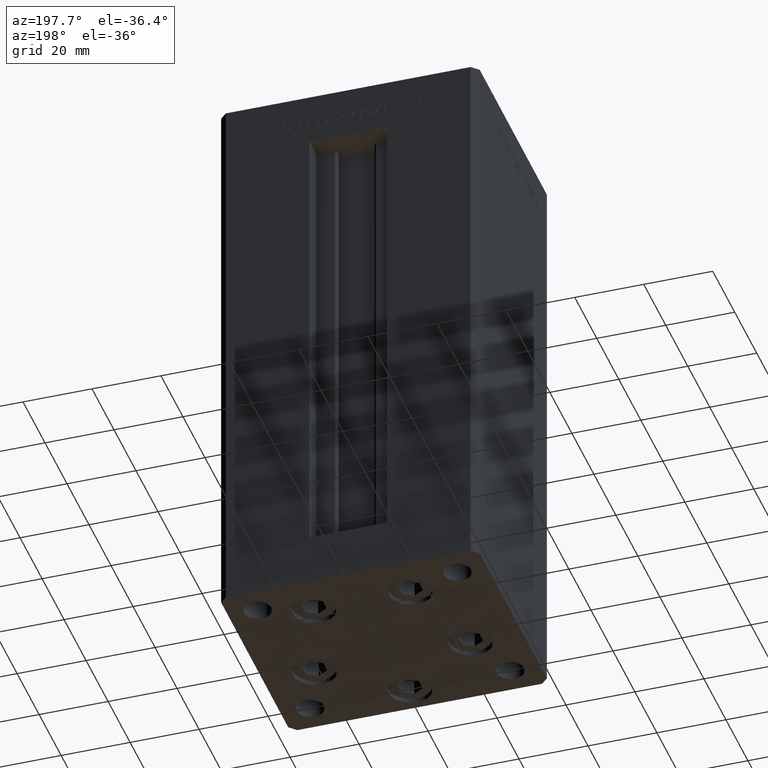
[diagram: clean part render]
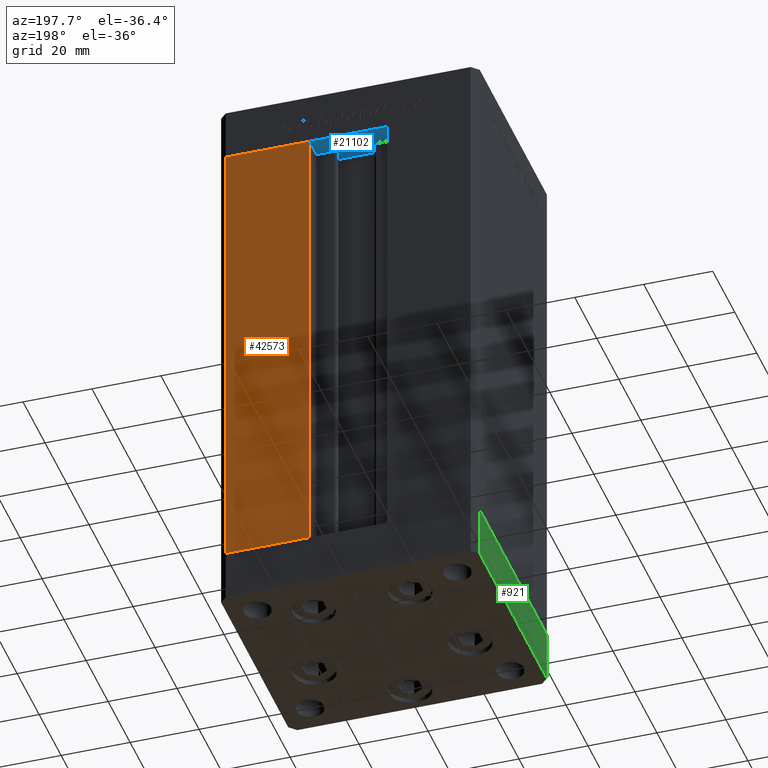
[diagram: same view with three faces highlighted in distinct colors, each labeled with its STEP entity id]
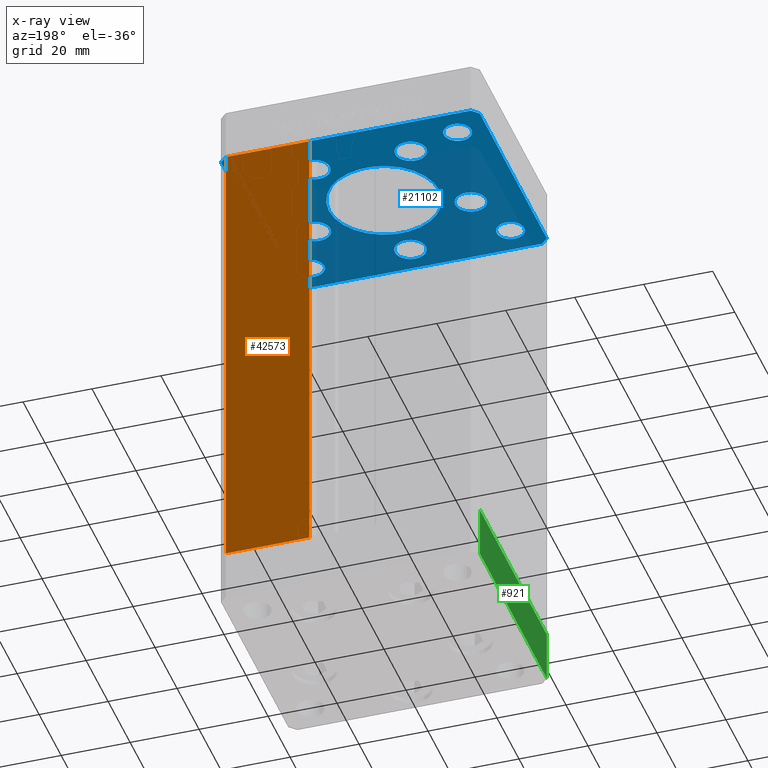
[diagram: x-ray of the same camera — body ghosted, the three highlighted faces saturated]
A machine part, auxiliary view with three faces highlighted in distinct colors.
The next image is the same camera in x-ray (body ghosted, the three faces saturated) — at least one of them is partly hidden behind the body in this view.
Their STEP definitions:

[orange] entity #42573 — the highlighted planar face has unit normal (0, -1, 0).
#1927 = EDGE_CURVE ( 'NONE', #24559, #16770, #36311, .T. ) ;
#3987 = CARTESIAN_POINT ( 'NONE',  ( 11.24999999999999467, 32.49999999999999289, 136.0000000000000000 ) ) ;
#5789 = EDGE_CURVE ( 'NONE', #16770, #24734, #40771, .T. ) ;
#6954 = VECTOR ( 'NONE', #15970, 1000.000000000000000 ) ;
#7693 = LINE ( 'NONE', #23539, #50207 ) ;
#10407 = VECTOR ( 'NONE', #34188, 1000.000000000000000 ) ;
#12284 = EDGE_CURVE ( 'NONE', #41829, #24559, #7693, .T. ) ;
#13925 = DIRECTION ( 'NONE',  ( 0.000000000000000000, -0.000000000000000000, -1.000000000000000000 ) ) ;
#15945 = DIRECTION ( 'NONE',  ( -0.000000000000000000, -0.000000000000000000, -1.000000000000000000 ) ) ;
#15970 = DIRECTION ( 'NONE',  ( 1.000000000000000000, 0.000000000000000000, 0.000000000000000000 ) ) ;
#16751 = CARTESIAN_POINT ( 'NONE',  ( -11.25000000000000178, 32.49999999999999289, 136.0000000000000000 ) ) ;
#16770 = VERTEX_POINT ( 'NONE', #26963 ) ;
#23539 = CARTESIAN_POINT ( 'NONE',  ( 11.25000000000000178, 32.49999999999999289, 0.000000000000000000 ) ) ;
#24559 = VERTEX_POINT ( 'NONE', #3987 ) ;
#24734 = VERTEX_POINT ( 'NONE', #50090 ) ;
#26405 = ORIENTED_EDGE ( 'NONE', *, *, #1927, .T. ) ;
#26963 = CARTESIAN_POINT ( 'NONE',  ( 35.50000000000000000, 32.49999999999999289, 136.0000000000000000 ) ) ;
#27377 = AXIS2_PLACEMENT_3D ( 'NONE', #29776, #29499, #13925 ) ;
#29499 = DIRECTION ( 'NONE',  ( 0.000000000000000000, -1.000000000000000000, 0.000000000000000000 ) ) ;
#29776 = CARTESIAN_POINT ( 'NONE',  ( -11.25000000000000178, 32.49999999999999289, 136.0000000000000000 ) ) ;
#29973 = CARTESIAN_POINT ( 'NONE',  ( -11.25000000000000178, 32.49999999999999289, 0.000000000000000000 ) ) ;
#30275 = FACE_OUTER_BOUND ( 'NONE', #43866, .T. ) ;
#31801 = ORIENTED_EDGE ( 'NONE', *, *, #40161, .T. ) ;
#34188 = DIRECTION ( 'NONE',  ( -1.000000000000000000, 0.000000000000000000, 0.000000000000000000 ) ) ;
#34442 = LINE ( 'NONE', #29973, #10407 ) ;
#35604 = VECTOR ( 'NONE', #15945, 1000.000000000000000 ) ;
#36311 = LINE ( 'NONE', #16751, #6954 ) ;
#39655 = DIRECTION ( 'NONE',  ( -0.000000000000000000, -0.000000000000000000, 1.000000000000000000 ) ) ;
#39994 = CARTESIAN_POINT ( 'NONE',  ( 35.50000000000000000, 32.49999999999999289, 136.0000000000000000 ) ) ;
#40161 = EDGE_CURVE ( 'NONE', #24734, #41829, #34442, .T. ) ;
#40771 = LINE ( 'NONE', #39994, #35604 ) ;
#40917 = ORIENTED_EDGE ( 'NONE', *, *, #5789, .T. ) ;
#40933 = ORIENTED_EDGE ( 'NONE', *, *, #12284, .T. ) ;
#41829 = VERTEX_POINT ( 'NONE', #49787 ) ;
#42573 = ADVANCED_FACE ( 'NONE', ( #30275 ), #50094, .F. ) ;
#43866 = EDGE_LOOP ( 'NONE', ( #31801, #40933, #26405, #40917 ) ) ;
#49787 = CARTESIAN_POINT ( 'NONE',  ( 11.25000000000000178, 32.49999999999999289, 0.000000000000000000 ) ) ;
#50090 = CARTESIAN_POINT ( 'NONE',  ( 35.50000000000000000, 32.49999999999999289, 0.000000000000000000 ) ) ;
#50094 = PLANE ( 'NONE',  #27377 ) ;
#50207 = VECTOR ( 'NONE', #39655, 1000.000000000000000 ) ;

[blue] entity #21102 — the highlighted planar face has unit normal (0, 0, 1).
#200 = EDGE_CURVE ( 'NONE', #32732, #41507, #43193, .T. ) ;
#228 = VERTEX_POINT ( 'NONE', #41039 ) ;
#476 = CARTESIAN_POINT ( 'NONE',  ( -29.00000000000000000, -23.99999999999999645, -15.00000000000000000 ) ) ;
#844 = DIRECTION ( 'NONE',  ( -0.7071067811865524577, 0.7071067811865426878, 0.000000000000000000 ) ) ;
#950 = ORIENTED_EDGE ( 'NONE', *, *, #1694, .F. ) ;
#1377 = EDGE_CURVE ( 'NONE', #35932, #33489, #33045, .T. ) ;
#1400 = AXIS2_PLACEMENT_3D ( 'NONE', #476, #48774, #12592 ) ;
#1590 = ORIENTED_EDGE ( 'NONE', *, *, #36398, .F. ) ;
#1694 = EDGE_CURVE ( 'NONE', #13457, #20293, #46573, .T. ) ;
#2231 = EDGE_CURVE ( 'NONE', #20699, #23492, #43237, .T. ) ;
#3050 = DIRECTION ( 'NONE',  ( 1.000000000000000000, 0.000000000000000000, 0.000000000000000000 ) ) ;
#3270 = CIRCLE ( 'NONE', #28589, 4.500000000000001776 ) ;
#3855 = DIRECTION ( 'NONE',  ( -0.000000000000000000, -0.000000000000000000, -1.000000000000000000 ) ) ;
#4065 = CARTESIAN_POINT ( 'NONE',  ( 4.500000000000001776, -24.00000000000001066, -15.00000000000000000 ) ) ;
#4249 = VERTEX_POINT ( 'NONE', #39952 ) ;
#4338 = VECTOR ( 'NONE', #844, 1000.000000000000000 ) ;
#4419 = DIRECTION ( 'NONE',  ( 1.000000000000000000, 0.000000000000000000, 0.000000000000000000 ) ) ;
#4665 = DIRECTION ( 'NONE',  ( 0.000000000000000000, -0.000000000000000000, -1.000000000000000000 ) ) ;
#4853 = CARTESIAN_POINT ( 'NONE',  ( -29.00000000000000000, 24.00000000000000711, -15.00000000000000000 ) ) ;
#4883 = DIRECTION ( 'NONE',  ( -1.000000000000000000, 0.000000000000000000, 0.000000000000000000 ) ) ;
#5016 = VERTEX_POINT ( 'NONE', #43922 ) ;
#5397 = ORIENTED_EDGE ( 'NONE', *, *, #44910, .F. ) ;
#5447 = AXIS2_PLACEMENT_3D ( 'NONE', #4853, #28100, #41028 ) ;
#5609 = CIRCLE ( 'NONE', #34284, 16.00000000000000000 ) ;
#5904 = LINE ( 'NONE', #22004, #19065 ) ;
#5945 = CARTESIAN_POINT ( 'NONE',  ( 29.00000000000000355, -23.99999999999999645, -15.00000000000000000 ) ) ;
#6230 = LINE ( 'NONE', #14676, #9929 ) ;
#6350 = DIRECTION ( 'NONE',  ( 1.000000000000000000, 0.000000000000000000, 0.000000000000000000 ) ) ;
#6463 = DIRECTION ( 'NONE',  ( 1.000000000000000000, 0.000000000000000000, 0.000000000000000000 ) ) ;
#6472 = FACE_BOUND ( 'NONE', #14980, .T. ) ;
#6653 = ORIENTED_EDGE ( 'NONE', *, *, #9963, .F. ) ;
#6946 = VECTOR ( 'NONE', #47720, 1000.000000000000000 ) ;
#8000 = CARTESIAN_POINT ( 'NONE',  ( 18.12741699796953299, -8.000000000000000000, -15.00000000000000000 ) ) ;
#8108 = CARTESIAN_POINT ( 'NONE',  ( -35.50000000000000711, 32.49999999999997868, -15.00000000000000000 ) ) ;
#8163 = CARTESIAN_POINT ( 'NONE',  ( -25.00000000000000000, 24.00000000000000711, -15.00000000000000000 ) ) ;
#8475 = LINE ( 'NONE', #48873, #11465 ) ;
#8624 = VERTEX_POINT ( 'NONE', #15557 ) ;
#8764 = DIRECTION ( 'NONE',  ( 1.000000000000000000, 0.000000000000000000, 0.000000000000000000 ) ) ;
#8816 = CARTESIAN_POINT ( 'NONE',  ( 29.00000000000000000, 24.00000000000000355, -15.00000000000000000 ) ) ;
#9205 = VERTEX_POINT ( 'NONE', #45319 ) ;
#9220 = VERTEX_POINT ( 'NONE', #21544 ) ;
#9569 = DIRECTION ( 'NONE',  ( 0.000000000000000000, 0.000000000000000000, 1.000000000000000000 ) ) ;
#9805 = ORIENTED_EDGE ( 'NONE', *, *, #21810, .F. ) ;
#9919 = CARTESIAN_POINT ( 'NONE',  ( 0.000000000000000000, -24.00000000000001066, -15.00000000000000000 ) ) ;
#9929 = VECTOR ( 'NONE', #30775, 1000.000000000000000 ) ;
#9963 = EDGE_CURVE ( 'NONE', #228, #28398, #30655, .T. ) ;
#9995 = AXIS2_PLACEMENT_3D ( 'NONE', #50552, #43183, #3050 ) ;
#10302 = DIRECTION ( 'NONE',  ( 0.000000000000000000, -0.000000000000000000, -1.000000000000000000 ) ) ;
#10384 = DIRECTION ( 'NONE',  ( 1.000000000000000000, 0.000000000000000000, 0.000000000000000000 ) ) ;
#10427 = FACE_BOUND ( 'NONE', #44568, .T. ) ;
#10820 = ORIENTED_EDGE ( 'NONE', *, *, #30573, .T. ) ;
#10935 = FACE_OUTER_BOUND ( 'NONE', #28818, .T. ) ;
#11085 = DIRECTION ( 'NONE',  ( 1.000000000000000000, 0.000000000000000000, 0.000000000000000000 ) ) ;
#11330 = CARTESIAN_POINT ( 'NONE',  ( -18.12741699796953654, -8.000000000000000000, -15.00000000000000000 ) ) ;
#11343 = AXIS2_PLACEMENT_3D ( 'NONE', #37394, #4665, #40579 ) ;
#11465 = VECTOR ( 'NONE', #37260, 1000.000000000000000 ) ;
#12261 = VERTEX_POINT ( 'NONE', #27498 ) ;
#12326 = EDGE_CURVE ( 'NONE', #23511, #36415, #8475, .T. ) ;
#12459 = CIRCLE ( 'NONE', #31032, 4.499999999999997335 ) ;
#12530 = EDGE_LOOP ( 'NONE', ( #6653, #9805 ) ) ;
#12592 = DIRECTION ( 'NONE',  ( 1.000000000000000000, 0.000000000000000000, 0.000000000000000000 ) ) ;
#12645 = DIRECTION ( 'NONE',  ( 0.000000000000000000, -0.000000000000000000, -1.000000000000000000 ) ) ;
#12935 = AXIS2_PLACEMENT_3D ( 'NONE', #31034, #47138, #43712 ) ;
#12973 = DIRECTION ( 'NONE',  ( 0.000000000000000000, 1.000000000000000000, 0.000000000000000000 ) ) ;
#13030 = DIRECTION ( 'NONE',  ( 1.000000000000000000, 0.000000000000000000, 0.000000000000000000 ) ) ;
#13310 = EDGE_CURVE ( 'NONE', #9205, #15596, #44374, .T. ) ;
#13457 = VERTEX_POINT ( 'NONE', #23629 ) ;
#13707 = EDGE_CURVE ( 'NONE', #22948, #36117, #5904, .T. ) ;
#14311 = EDGE_CURVE ( 'NONE', #23492, #20699, #5609, .T. ) ;
#14676 = CARTESIAN_POINT ( 'NONE',  ( 35.50000000000000000, 32.49999999999999289, -15.00000000000000000 ) ) ;
#14723 = CARTESIAN_POINT ( 'NONE',  ( 37.50000000000000711, 30.50000000000001421, -15.00000000000000000 ) ) ;
#14788 = CIRCLE ( 'NONE', #31672, 4.000000000000000000 ) ;
#14908 = DIRECTION ( 'NONE',  ( 0.000000000000000000, -0.000000000000000000, -1.000000000000000000 ) ) ;
#14980 = EDGE_LOOP ( 'NONE', ( #27582, #26728 ) ) ;
#15098 = AXIS2_PLACEMENT_3D ( 'NONE', #37284, #40733, #8764 ) ;
#15178 = FACE_BOUND ( 'NONE', #33107, .T. ) ;
#15203 = ORIENTED_EDGE ( 'NONE', *, *, #17592, .F. ) ;
#15557 = CARTESIAN_POINT ( 'NONE',  ( -35.50000000000001421, -32.50000000000000711, -15.00000000000000000 ) ) ;
#15596 = VERTEX_POINT ( 'NONE', #31039 ) ;
#16423 = CARTESIAN_POINT ( 'NONE',  ( -35.50000000000001421, -32.50000000000000711, -15.00000000000000000 ) ) ;
#17128 = VERTEX_POINT ( 'NONE', #42511 ) ;
#17138 = AXIS2_PLACEMENT_3D ( 'NONE', #24943, #3855, #4883 ) ;
#17225 = ORIENTED_EDGE ( 'NONE', *, *, #200, .T. ) ;
#17237 = CARTESIAN_POINT ( 'NONE',  ( 29.00000000000000000, 24.00000000000000355, -15.00000000000000000 ) ) ;
#17281 = EDGE_CURVE ( 'NONE', #4249, #38005, #35195, .T. ) ;
#17331 = VECTOR ( 'NONE', #35862, 1000.000000000000000 ) ;
#17347 = DIRECTION ( 'NONE',  ( 1.000000000000000000, 0.000000000000000000, 0.000000000000000000 ) ) ;
#17592 = EDGE_CURVE ( 'NONE', #8624, #22948, #49134, .T. ) ;
#17937 = CIRCLE ( 'NONE', #38998, 4.500000000000005329 ) ;
#17989 = CARTESIAN_POINT ( 'NONE',  ( 35.50000000000000000, 32.49999999999999289, -15.00000000000000000 ) ) ;
#18118 = FACE_BOUND ( 'NONE', #30654, .T. ) ;
#18369 = PLANE ( 'NONE',  #9995 ) ;
#18380 = EDGE_CURVE ( 'NONE', #33489, #12261, #6230, .T. ) ;
#18620 = EDGE_CURVE ( 'NONE', #5016, #35782, #12459, .T. ) ;
#19065 = VECTOR ( 'NONE', #24547, 1000.000000000000000 ) ;
#19630 = CARTESIAN_POINT ( 'NONE',  ( -9.491068579633243019, 19.50000000000000000, -15.00000000000000000 ) ) ;
#20116 = ORIENTED_EDGE ( 'NONE', *, *, #38979, .F. ) ;
#20293 = VERTEX_POINT ( 'NONE', #4065 ) ;
#20307 = AXIS2_PLACEMENT_3D ( 'NONE', #42588, #46027, #22506 ) ;
#20699 = VERTEX_POINT ( 'NONE', #52044 ) ;
#21102 = ADVANCED_FACE ( 'NONE', ( #47122, #6472, #18118, #22320, #26534, #22833, #10427, #38956, #10935, #27053, #15178 ), #18369, .F. ) ;
#21150 = EDGE_CURVE ( 'NONE', #20293, #13457, #3270, .T. ) ;
#21430 = CARTESIAN_POINT ( 'NONE',  ( -37.50000000000000000, -30.50000000000004263, -15.00000000000000000 ) ) ;
#21540 = DIRECTION ( 'NONE',  ( -0.000000000000000000, -0.000000000000000000, -1.000000000000000000 ) ) ;
#21544 = CARTESIAN_POINT ( 'NONE',  ( 18.49106857963324657, 19.50000000000000000, -15.00000000000000000 ) ) ;
#21745 = ORIENTED_EDGE ( 'NONE', *, *, #36698, .F. ) ;
#21810 = EDGE_CURVE ( 'NONE', #28398, #228, #26877, .T. ) ;
#22004 = CARTESIAN_POINT ( 'NONE',  ( 35.50000000000001421, -32.49999999999992184, -15.00000000000000000 ) ) ;
#22118 = CARTESIAN_POINT ( 'NONE',  ( -33.00000000000000000, 24.00000000000000711, -15.00000000000000000 ) ) ;
#22209 = EDGE_CURVE ( 'NONE', #35782, #5016, #33632, .T. ) ;
#22320 = FACE_BOUND ( 'NONE', #12530, .T. ) ;
#22506 = DIRECTION ( 'NONE',  ( 1.000000000000000000, 0.000000000000000000, 0.000000000000000000 ) ) ;
#22563 = CARTESIAN_POINT ( 'NONE',  ( 0.000000000000000000, 0.000000000000000000, -15.00000000000000000 ) ) ;
#22726 = ORIENTED_EDGE ( 'NONE', *, *, #18380, .F. ) ;
#22833 = FACE_BOUND ( 'NONE', #48204, .T. ) ;
#22948 = VERTEX_POINT ( 'NONE', #40523 ) ;
#23492 = VERTEX_POINT ( 'NONE', #30587 ) ;
#23511 = VERTEX_POINT ( 'NONE', #46955 ) ;
#23629 = CARTESIAN_POINT ( 'NONE',  ( -4.500000000000001776, -24.00000000000001066, -15.00000000000000000 ) ) ;
#23894 = DIRECTION ( 'NONE',  ( 1.000000000000000000, 0.000000000000000000, 0.000000000000000000 ) ) ;
#24293 = VERTEX_POINT ( 'NONE', #19630 ) ;
#24410 = DIRECTION ( 'NONE',  ( 0.000000000000000000, -0.000000000000000000, -1.000000000000000000 ) ) ;
#24547 = DIRECTION ( 'NONE',  ( 0.7071067811865463515, 0.7071067811865487940, 0.000000000000000000 ) ) ;
#24650 = CARTESIAN_POINT ( 'NONE',  ( 13.99106857963324124, 19.50000000000000000, -15.00000000000000000 ) ) ;
#24943 = CARTESIAN_POINT ( 'NONE',  ( 29.00000000000000355, -23.99999999999999645, -15.00000000000000000 ) ) ;
#25118 = CARTESIAN_POINT ( 'NONE',  ( 37.50000000000000711, 30.50000000000001421, -15.00000000000000000 ) ) ;
#25230 = VERTEX_POINT ( 'NONE', #39701 ) ;
#26025 = DIRECTION ( 'NONE',  ( 0.000000000000000000, -0.000000000000000000, -1.000000000000000000 ) ) ;
#26534 = FACE_BOUND ( 'NONE', #37414, .T. ) ;
#26728 = ORIENTED_EDGE ( 'NONE', *, *, #18620, .F. ) ;
#26877 = CIRCLE ( 'NONE', #27714, 4.500000000000000888 ) ;
#27053 = FACE_BOUND ( 'NONE', #44749, .T. ) ;
#27181 = CARTESIAN_POINT ( 'NONE',  ( 22.62741699796953299, -8.000000000000000000, -15.00000000000000000 ) ) ;
#27412 = LINE ( 'NONE', #43784, #17331 ) ;
#27478 = ORIENTED_EDGE ( 'NONE', *, *, #13310, .T. ) ;
#27498 = CARTESIAN_POINT ( 'NONE',  ( -35.50000000000000711, 32.49999999999997868, -15.00000000000000000 ) ) ;
#27582 = ORIENTED_EDGE ( 'NONE', *, *, #22209, .F. ) ;
#27714 = AXIS2_PLACEMENT_3D ( 'NONE', #48827, #12645, #40918 ) ;
#27721 = DIRECTION ( 'NONE',  ( 0.000000000000000000, -0.000000000000000000, -1.000000000000000000 ) ) ;
#28034 = AXIS2_PLACEMENT_3D ( 'NONE', #22563, #38683, #47379 ) ;
#28100 = DIRECTION ( 'NONE',  ( -0.000000000000000000, -0.000000000000000000, -1.000000000000000000 ) ) ;
#28210 = CIRCLE ( 'NONE', #5447, 4.000000000000000000 ) ;
#28287 = ORIENTED_EDGE ( 'NONE', *, *, #1377, .F. ) ;
#28398 = VERTEX_POINT ( 'NONE', #8000 ) ;
#28589 = AXIS2_PLACEMENT_3D ( 'NONE', #36576, #24410, #23894 ) ;
#28818 = EDGE_LOOP ( 'NONE', ( #5397, #50155, #36152, #22726, #28287, #1590, #49797, #15203 ) ) ;
#28957 = CARTESIAN_POINT ( 'NONE',  ( 37.50000000000000711, -30.49999999999992895, -15.00000000000000000 ) ) ;
#29610 = AXIS2_PLACEMENT_3D ( 'NONE', #9919, #26025, #17347 ) ;
#29982 = DIRECTION ( 'NONE',  ( -1.000000000000000000, 0.000000000000000000, 0.000000000000000000 ) ) ;
#30372 = CARTESIAN_POINT ( 'NONE',  ( 13.99106857963324124, 19.50000000000000000, -15.00000000000000000 ) ) ;
#30382 = VERTEX_POINT ( 'NONE', #22118 ) ;
#30489 = CARTESIAN_POINT ( 'NONE',  ( -13.99106857963324124, 19.50000000000000000, -15.00000000000000000 ) ) ;
#30573 = EDGE_CURVE ( 'NONE', #15596, #9205, #40551, .T. ) ;
#30587 = CARTESIAN_POINT ( 'NONE',  ( -16.00000000000000000, 1.959434878635765131E-15, -15.00000000000000000 ) ) ;
#30654 = EDGE_LOOP ( 'NONE', ( #34872, #950 ) ) ;
#30655 = CIRCLE ( 'NONE', #32379, 4.500000000000000888 ) ;
#30762 = CIRCLE ( 'NONE', #31629, 4.500000000000005329 ) ;
#30775 = DIRECTION ( 'NONE',  ( -1.000000000000000000, -1.954618001100627573E-16, 0.000000000000000000 ) ) ;
#31032 = AXIS2_PLACEMENT_3D ( 'NONE', #35393, #27721, #11085 ) ;
#31034 = CARTESIAN_POINT ( 'NONE',  ( -29.00000000000000000, 24.00000000000000711, -15.00000000000000000 ) ) ;
#31039 = CARTESIAN_POINT ( 'NONE',  ( -25.00000000000000355, -23.99999999999999645, -15.00000000000000000 ) ) ;
#31284 = CARTESIAN_POINT ( 'NONE',  ( 25.00000000000000355, -23.99999999999999645, -15.00000000000000000 ) ) ;
#31512 = ORIENTED_EDGE ( 'NONE', *, *, #45708, .T. ) ;
#31629 = AXIS2_PLACEMENT_3D ( 'NONE', #24650, #41024, #40772 ) ;
#31672 = AXIS2_PLACEMENT_3D ( 'NONE', #17237, #9569, #33327 ) ;
#32379 = AXIS2_PLACEMENT_3D ( 'NONE', #27181, #49017, #4419 ) ;
#32732 = VERTEX_POINT ( 'NONE', #51777 ) ;
#32779 = DIRECTION ( 'NONE',  ( 1.000000000000000000, 1.172770800660376149E-15, 0.000000000000000000 ) ) ;
#33044 = LINE ( 'NONE', #49151, #38180 ) ;
#33045 = LINE ( 'NONE', #25118, #4338 ) ;
#33107 = EDGE_LOOP ( 'NONE', ( #42790, #20116 ) ) ;
#33327 = DIRECTION ( 'NONE',  ( 1.000000000000000000, 0.000000000000000000, 0.000000000000000000 ) ) ;
#33489 = VERTEX_POINT ( 'NONE', #17989 ) ;
#33632 = CIRCLE ( 'NONE', #15098, 4.499999999999997335 ) ;
#33635 = CARTESIAN_POINT ( 'NONE',  ( 0.000000000000000000, 0.000000000000000000, -15.00000000000000000 ) ) ;
#34124 = CIRCLE ( 'NONE', #11343, 4.499999999999999112 ) ;
#34284 = AXIS2_PLACEMENT_3D ( 'NONE', #33635, #50011, #10384 ) ;
#34725 = AXIS2_PLACEMENT_3D ( 'NONE', #30489, #14908, #6463 ) ;
#34872 = ORIENTED_EDGE ( 'NONE', *, *, #21150, .F. ) ;
#34934 = ORIENTED_EDGE ( 'NONE', *, *, #38849, .F. ) ;
#35193 = EDGE_CURVE ( 'NONE', #17128, #24293, #37272, .T. ) ;
#35195 = CIRCLE ( 'NONE', #49555, 4.000000000000000000 ) ;
#35393 = CARTESIAN_POINT ( 'NONE',  ( -22.62741699796953299, -8.000000000000000000, -15.00000000000000000 ) ) ;
#35713 = CIRCLE ( 'NONE', #17138, 4.000000000000000000 ) ;
#35782 = VERTEX_POINT ( 'NONE', #11330 ) ;
#35862 = DIRECTION ( 'NONE',  ( 0.7071067811865512365, -0.7071067811865439090, 0.000000000000000000 ) ) ;
#35932 = VERTEX_POINT ( 'NONE', #14723 ) ;
#36117 = VERTEX_POINT ( 'NONE', #28957 ) ;
#36152 = ORIENTED_EDGE ( 'NONE', *, *, #37088, .F. ) ;
#36398 = EDGE_CURVE ( 'NONE', #36117, #35932, #33044, .T. ) ;
#36415 = VERTEX_POINT ( 'NONE', #21430 ) ;
#36576 = CARTESIAN_POINT ( 'NONE',  ( 0.000000000000000000, -24.00000000000001066, -15.00000000000000000 ) ) ;
#36603 = ORIENTED_EDGE ( 'NONE', *, *, #43587, .F. ) ;
#36698 = EDGE_CURVE ( 'NONE', #9220, #25230, #17937, .T. ) ;
#36816 = EDGE_LOOP ( 'NONE', ( #10820, #27478 ) ) ;
#36824 = VERTEX_POINT ( 'NONE', #8163 ) ;
#37088 = EDGE_CURVE ( 'NONE', #12261, #23511, #46937, .T. ) ;
#37260 = DIRECTION ( 'NONE',  ( 2.275047181608926165E-16, -1.000000000000000000, 0.000000000000000000 ) ) ;
#37272 = CIRCLE ( 'NONE', #34725, 4.499999999999999112 ) ;
#37284 = CARTESIAN_POINT ( 'NONE',  ( -22.62741699796953299, -8.000000000000000000, -15.00000000000000000 ) ) ;
#37394 = CARTESIAN_POINT ( 'NONE',  ( -13.99106857963324124, 19.50000000000000000, -15.00000000000000000 ) ) ;
#37414 = EDGE_LOOP ( 'NONE', ( #21745, #49677 ) ) ;
#38005 = VERTEX_POINT ( 'NONE', #31284 ) ;
#38180 = VECTOR ( 'NONE', #12973, 1000.000000000000000 ) ;
#38683 = DIRECTION ( 'NONE',  ( 0.000000000000000000, -0.000000000000000000, -1.000000000000000000 ) ) ;
#38849 = EDGE_CURVE ( 'NONE', #30382, #36824, #40784, .T. ) ;
#38956 = FACE_BOUND ( 'NONE', #36816, .T. ) ;
#38979 = EDGE_CURVE ( 'NONE', #38005, #4249, #35713, .T. ) ;
#38998 = AXIS2_PLACEMENT_3D ( 'NONE', #30372, #10302, #6350 ) ;
#39701 = CARTESIAN_POINT ( 'NONE',  ( 9.491068579633235913, 19.50000000000000000, -15.00000000000000000 ) ) ;
#39952 = CARTESIAN_POINT ( 'NONE',  ( 33.00000000000000000, -23.99999999999999645, -15.00000000000000000 ) ) ;
#40523 = CARTESIAN_POINT ( 'NONE',  ( 35.50000000000001421, -32.49999999999992184, -15.00000000000000000 ) ) ;
#40551 = CIRCLE ( 'NONE', #20307, 3.999999999999996447 ) ;
#40579 = DIRECTION ( 'NONE',  ( 1.000000000000000000, 0.000000000000000000, 0.000000000000000000 ) ) ;
#40733 = DIRECTION ( 'NONE',  ( 0.000000000000000000, -0.000000000000000000, -1.000000000000000000 ) ) ;
#40772 = DIRECTION ( 'NONE',  ( 1.000000000000000000, 0.000000000000000000, 0.000000000000000000 ) ) ;
#40784 = CIRCLE ( 'NONE', #12935, 4.000000000000000000 ) ;
#40918 = DIRECTION ( 'NONE',  ( 1.000000000000000000, 0.000000000000000000, 0.000000000000000000 ) ) ;
#41024 = DIRECTION ( 'NONE',  ( 0.000000000000000000, -0.000000000000000000, -1.000000000000000000 ) ) ;
#41028 = DIRECTION ( 'NONE',  ( -1.000000000000000000, 0.000000000000000000, 0.000000000000000000 ) ) ;
#41039 = CARTESIAN_POINT ( 'NONE',  ( 27.12741699796953654, -8.000000000000000000, -15.00000000000000000 ) ) ;
#41507 = VERTEX_POINT ( 'NONE', #48369 ) ;
#42511 = CARTESIAN_POINT ( 'NONE',  ( -18.49106857963323947, 19.50000000000000000, -15.00000000000000000 ) ) ;
#42588 = CARTESIAN_POINT ( 'NONE',  ( -29.00000000000000000, -23.99999999999999645, -15.00000000000000000 ) ) ;
#42790 = ORIENTED_EDGE ( 'NONE', *, *, #17281, .F. ) ;
#43183 = DIRECTION ( 'NONE',  ( -0.000000000000000000, 0.000000000000000000, 1.000000000000000000 ) ) ;
#43193 = CIRCLE ( 'NONE', #49098, 4.000000000000000000 ) ;
#43237 = CIRCLE ( 'NONE', #28034, 16.00000000000000000 ) ;
#43587 = EDGE_CURVE ( 'NONE', #24293, #17128, #34124, .T. ) ;
#43712 = DIRECTION ( 'NONE',  ( -1.000000000000000000, 0.000000000000000000, 0.000000000000000000 ) ) ;
#43784 = CARTESIAN_POINT ( 'NONE',  ( -37.50000000000000000, -30.50000000000004263, -15.00000000000000000 ) ) ;
#43922 = CARTESIAN_POINT ( 'NONE',  ( -27.12741699796953299, -8.000000000000000000, -15.00000000000000000 ) ) ;
#43944 = EDGE_CURVE ( 'NONE', #25230, #9220, #30762, .T. ) ;
#44374 = CIRCLE ( 'NONE', #1400, 3.999999999999996447 ) ;
#44440 = EDGE_LOOP ( 'NONE', ( #47074, #45588 ) ) ;
#44568 = EDGE_LOOP ( 'NONE', ( #17225, #31512 ) ) ;
#44749 = EDGE_LOOP ( 'NONE', ( #51243, #34934 ) ) ;
#44910 = EDGE_CURVE ( 'NONE', #36415, #8624, #27412, .T. ) ;
#45006 = DIRECTION ( 'NONE',  ( 0.000000000000000000, 0.000000000000000000, 1.000000000000000000 ) ) ;
#45319 = CARTESIAN_POINT ( 'NONE',  ( -32.99999999999999289, -23.99999999999999645, -15.00000000000000000 ) ) ;
#45588 = ORIENTED_EDGE ( 'NONE', *, *, #14311, .F. ) ;
#45708 = EDGE_CURVE ( 'NONE', #41507, #32732, #14788, .T. ) ;
#46027 = DIRECTION ( 'NONE',  ( 0.000000000000000000, 0.000000000000000000, 1.000000000000000000 ) ) ;
#46573 = CIRCLE ( 'NONE', #29610, 4.500000000000001776 ) ;
#46937 = LINE ( 'NONE', #8108, #6946 ) ;
#46955 = CARTESIAN_POINT ( 'NONE',  ( -37.50000000000001421, 30.50000000000000000, -15.00000000000000000 ) ) ;
#47074 = ORIENTED_EDGE ( 'NONE', *, *, #2231, .F. ) ;
#47085 = EDGE_CURVE ( 'NONE', #36824, #30382, #28210, .T. ) ;
#47122 = FACE_BOUND ( 'NONE', #44440, .T. ) ;
#47138 = DIRECTION ( 'NONE',  ( -0.000000000000000000, -0.000000000000000000, -1.000000000000000000 ) ) ;
#47379 = DIRECTION ( 'NONE',  ( 1.000000000000000000, 0.000000000000000000, 0.000000000000000000 ) ) ;
#47720 = DIRECTION ( 'NONE',  ( -0.7071067811865524577, -0.7071067811865426878, 0.000000000000000000 ) ) ;
#48204 = EDGE_LOOP ( 'NONE', ( #36603, #49971 ) ) ;
#48369 = CARTESIAN_POINT ( 'NONE',  ( 24.99999999999999645, 24.00000000000000355, -15.00000000000000000 ) ) ;
#48774 = DIRECTION ( 'NONE',  ( 0.000000000000000000, 0.000000000000000000, 1.000000000000000000 ) ) ;
#48827 = CARTESIAN_POINT ( 'NONE',  ( 22.62741699796953299, -8.000000000000000000, -15.00000000000000000 ) ) ;
#48873 = CARTESIAN_POINT ( 'NONE',  ( -37.50000000000001421, 30.50000000000000000, -15.00000000000000000 ) ) ;
#49017 = DIRECTION ( 'NONE',  ( 0.000000000000000000, -0.000000000000000000, -1.000000000000000000 ) ) ;
#49098 = AXIS2_PLACEMENT_3D ( 'NONE', #8816, #45006, #13030 ) ;
#49134 = LINE ( 'NONE', #16423, #51196 ) ;
#49151 = CARTESIAN_POINT ( 'NONE',  ( 37.50000000000000711, -30.49999999999992895, -15.00000000000000000 ) ) ;
#49555 = AXIS2_PLACEMENT_3D ( 'NONE', #5945, #21540, #29982 ) ;
#49677 = ORIENTED_EDGE ( 'NONE', *, *, #43944, .F. ) ;
#49797 = ORIENTED_EDGE ( 'NONE', *, *, #13707, .F. ) ;
#49971 = ORIENTED_EDGE ( 'NONE', *, *, #35193, .F. ) ;
#50011 = DIRECTION ( 'NONE',  ( 0.000000000000000000, -0.000000000000000000, -1.000000000000000000 ) ) ;
#50155 = ORIENTED_EDGE ( 'NONE', *, *, #12326, .F. ) ;
#50552 = CARTESIAN_POINT ( 'NONE',  ( 0.000000000000000000, 0.000000000000000000, -15.00000000000000000 ) ) ;
#51196 = VECTOR ( 'NONE', #32779, 1000.000000000000000 ) ;
#51243 = ORIENTED_EDGE ( 'NONE', *, *, #47085, .F. ) ;
#51777 = CARTESIAN_POINT ( 'NONE',  ( 33.00000000000000000, 24.00000000000000355, -15.00000000000000000 ) ) ;
#52044 = CARTESIAN_POINT ( 'NONE',  ( 16.00000000000000000, 0.000000000000000000, -15.00000000000000000 ) ) ;

[green] entity #921 — the highlighted planar face has unit normal (-1, 0, 0).
#921 = ADVANCED_FACE ( 'NONE', ( #40009 ), #44230, .T. ) ;
#1140 = EDGE_CURVE ( 'NONE', #2552, #18653, #31211, .T. ) ;
#2552 = VERTEX_POINT ( 'NONE', #48625 ) ;
#5752 = LINE ( 'NONE', #9174, #18678 ) ;
#9174 = CARTESIAN_POINT ( 'NONE',  ( 37.50000000000001421, -30.50000000000000711, 0.000000000000000000 ) ) ;
#12786 = ORIENTED_EDGE ( 'NONE', *, *, #33966, .F. ) ;
#13400 = DIRECTION ( 'NONE',  ( -1.478780668045802821E-15, 1.000000000000000000, 0.000000000000000000 ) ) ;
#14036 = ORIENTED_EDGE ( 'NONE', *, *, #1140, .F. ) ;
#15189 = CARTESIAN_POINT ( 'NONE',  ( 37.50000000000001421, -30.50000000000000711, -15.00000000000000000 ) ) ;
#16103 = CARTESIAN_POINT ( 'NONE',  ( 37.49999999999992184, 30.50000000000001066, -15.00000000000000000 ) ) ;
#16207 = AXIS2_PLACEMENT_3D ( 'NONE', #24409, #43951, #20192 ) ;
#16446 = EDGE_CURVE ( 'NONE', #20473, #49847, #25741, .T. ) ;
#18653 = VERTEX_POINT ( 'NONE', #27467 ) ;
#18678 = VECTOR ( 'NONE', #13400, 1000.000000000000000 ) ;
#19339 = CARTESIAN_POINT ( 'NONE',  ( 37.50000000000001421, -30.50000000000000711, -15.00000000000000000 ) ) ;
#20043 = VECTOR ( 'NONE', #33927, 1000.000000000000000 ) ;
#20192 = DIRECTION ( 'NONE',  ( -1.478780668045803018E-15, 1.000000000000000000, 0.000000000000000000 ) ) ;
#20473 = VERTEX_POINT ( 'NONE', #16103 ) ;
#22296 = CARTESIAN_POINT ( 'NONE',  ( 37.49999999999992184, 30.50000000000001066, -15.00000000000000000 ) ) ;
#24409 = CARTESIAN_POINT ( 'NONE',  ( 37.50000000000001421, -30.50000000000000711, -15.00000000000000000 ) ) ;
#25741 = LINE ( 'NONE', #22296, #20043 ) ;
#27320 = EDGE_CURVE ( 'NONE', #2552, #20473, #47921, .T. ) ;
#27467 = CARTESIAN_POINT ( 'NONE',  ( 37.50000000000001421, -30.50000000000000711, 0.000000000000000000 ) ) ;
#31182 = CARTESIAN_POINT ( 'NONE',  ( 37.49999999999992184, 30.50000000000001066, 0.000000000000000000 ) ) ;
#31211 = LINE ( 'NONE', #19339, #44020 ) ;
#33900 = EDGE_LOOP ( 'NONE', ( #12786, #14036, #36113, #34346 ) ) ;
#33927 = DIRECTION ( 'NONE',  ( 0.000000000000000000, 0.000000000000000000, 1.000000000000000000 ) ) ;
#33966 = EDGE_CURVE ( 'NONE', #18653, #49847, #5752, .T. ) ;
#34346 = ORIENTED_EDGE ( 'NONE', *, *, #16446, .T. ) ;
#36113 = ORIENTED_EDGE ( 'NONE', *, *, #27320, .T. ) ;
#38025 = VECTOR ( 'NONE', #51091, 1000.000000000000000 ) ;
#40009 = FACE_OUTER_BOUND ( 'NONE', #33900, .T. ) ;
#43951 = DIRECTION ( 'NONE',  ( 1.000000000000000000, 1.478780668045803018E-15, -0.000000000000000000 ) ) ;
#44020 = VECTOR ( 'NONE', #50754, 1000.000000000000000 ) ;
#44230 = PLANE ( 'NONE',  #16207 ) ;
#47921 = LINE ( 'NONE', #15189, #38025 ) ;
#48625 = CARTESIAN_POINT ( 'NONE',  ( 37.50000000000001421, -30.50000000000000711, -15.00000000000000000 ) ) ;
#49847 = VERTEX_POINT ( 'NONE', #31182 ) ;
#50754 = DIRECTION ( 'NONE',  ( 0.000000000000000000, 0.000000000000000000, 1.000000000000000000 ) ) ;
#51091 = DIRECTION ( 'NONE',  ( -1.478780668045802821E-15, 1.000000000000000000, 0.000000000000000000 ) ) ;